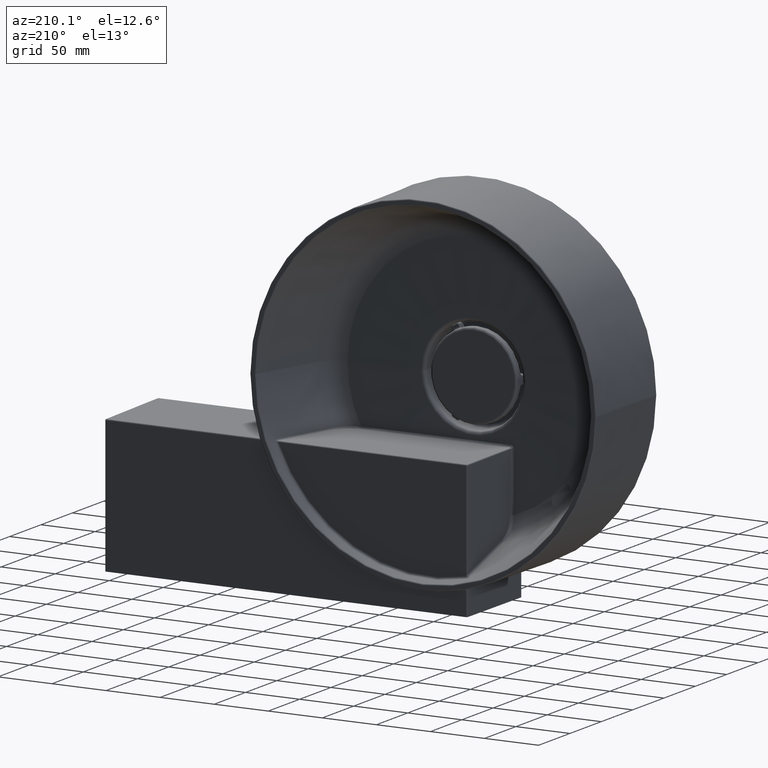
[diagram: clean part render]
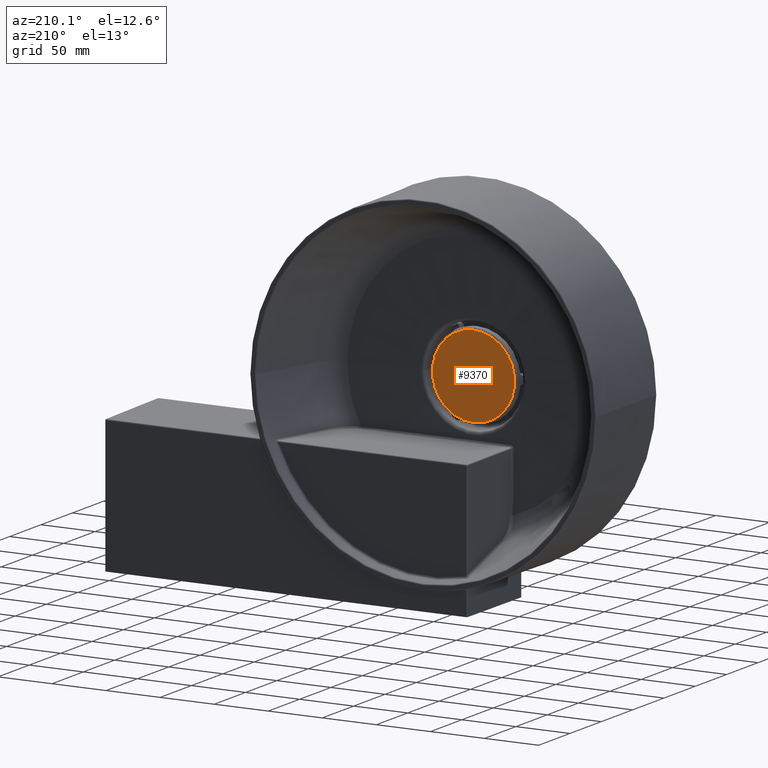
[diagram: same view with one face highlighted and labeled with its STEP entity id]
A machine part, auxiliary view. The second image highlights one B-rep face of the part: STEP entity #9370.
In plain terms, the highlighted planar face has unit normal (-0, 1, 0).
Its self-contained STEP definition (entity closure, byte-faithful):
#311 = AXIS2_PLACEMENT_3D ( 'NONE', #3728, #6770, #9332 ) ;
#404 = PLANE ( 'NONE',  #311 ) ;
#591 = EDGE_LOOP ( 'NONE', ( #1911, #1908 ) ) ;
#653 = CARTESIAN_POINT ( 'NONE',  ( 0.0000000000000000000, 36.26575789991628795, 0.0000000000000000000 ) ) ;
#1252 = VERTEX_POINT ( 'NONE', #6628 ) ;
#1908 = ORIENTED_EDGE ( 'NONE', *, *, #2096, .T. ) ;
#1911 = ORIENTED_EDGE ( 'NONE', *, *, #7042, .T. ) ;
#2096 = EDGE_CURVE ( 'NONE', #1252, #4660, #9067, .T. ) ;
#2434 = CARTESIAN_POINT ( 'NONE',  ( 0.0000000000000000000, 36.26575789991628795, 37.99999999999998579 ) ) ;
#3367 = DIRECTION ( 'NONE',  ( 0.0000000000000000000, 0.0000000000000000000, 1.000000000000000000 ) ) ;
#3372 = DIRECTION ( 'NONE',  ( -0.0000000000000000000, 1.000000000000000000, -0.0000000000000000000 ) ) ;
#3402 = CARTESIAN_POINT ( 'NONE',  ( 0.0000000000000000000, 36.26575789991628795, 0.0000000000000000000 ) ) ;
#3575 = AXIS2_PLACEMENT_3D ( 'NONE', #3402, #3372, #3367 ) ;
#3728 = CARTESIAN_POINT ( 'NONE',  ( 0.0000000000000000000, 36.26575789991628795, 37.99999999999998579 ) ) ;
#3926 = DIRECTION ( 'NONE',  ( -0.0000000000000000000, 1.000000000000000000, -0.0000000000000000000 ) ) ;
#4660 = VERTEX_POINT ( 'NONE', #2434 ) ;
#6193 = CIRCLE ( 'NONE', #7415, 37.99999999999998579 ) ;
#6628 = CARTESIAN_POINT ( 'NONE',  ( 4.776122516674676300E-15, 36.26575789991628795, -37.99999999999998579 ) ) ;
#6770 = DIRECTION ( 'NONE',  ( -0.0000000000000000000, 1.000000000000000000, 0.0000000000000000000 ) ) ;
#6981 = DIRECTION ( 'NONE',  ( 0.0000000000000000000, 0.0000000000000000000, 1.000000000000000000 ) ) ;
#7042 = EDGE_CURVE ( 'NONE', #4660, #1252, #6193, .T. ) ;
#7415 = AXIS2_PLACEMENT_3D ( 'NONE', #653, #3926, #6981 ) ;
#7481 = FACE_OUTER_BOUND ( 'NONE', #591, .T. ) ;
#9067 = CIRCLE ( 'NONE', #3575, 37.99999999999998579 ) ;
#9332 = DIRECTION ( 'NONE',  ( 0.0000000000000000000, 0.0000000000000000000, 1.000000000000000000 ) ) ;
#9370 = ADVANCED_FACE ( 'NONE', ( #7481 ), #404, .T. ) ;